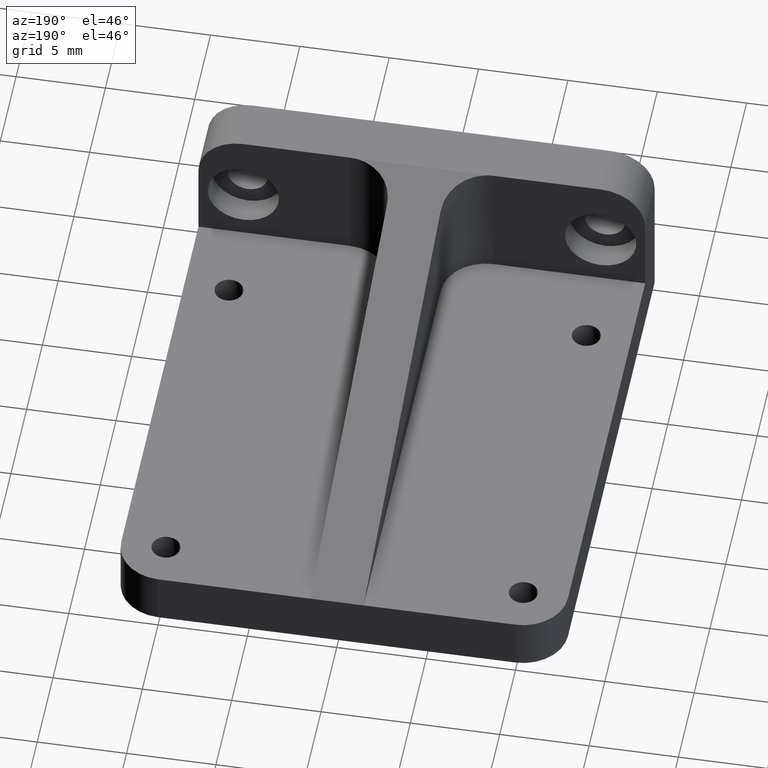
[diagram: clean part render]
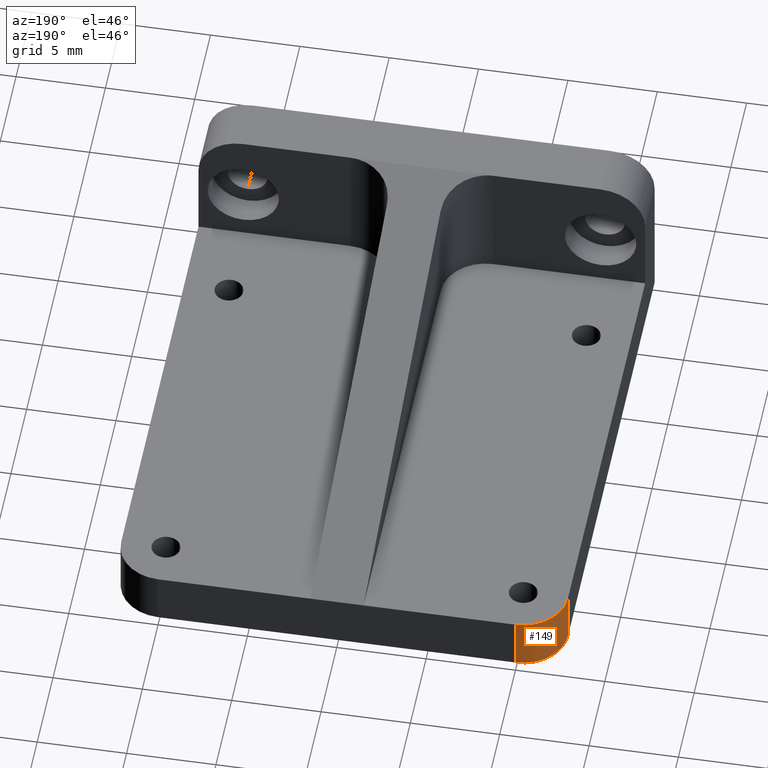
[diagram: same view with one face highlighted and labeled with its STEP entity id]
A machine part, auxiliary view. The second image highlights one B-rep face of the part: STEP entity #149.
In plain terms, the highlighted cylindrical surface (partial cylindrical patch) has radius 2.5 mm, axis along (0, 0, -1).
Its self-contained STEP definition (entity closure, byte-faithful):
#49 = DIRECTION ( 'NONE',  ( 1.000000000000000000, 0.0000000000000000000, 0.0000000000000000000 ) ) ;
#69 = DIRECTION ( 'NONE',  ( -1.000000000000000000, 0.0000000000000000000, 0.0000000000000000000 ) ) ;
#73 = EDGE_CURVE ( 'NONE', #799, #206, #541, .T. ) ;
#149 = ADVANCED_FACE ( 'NONE', ( #1026 ), #537, .T. ) ;
#198 = EDGE_CURVE ( 'NONE', #389, #799, #1109, .T. ) ;
#206 = VERTEX_POINT ( 'NONE', #356 ) ;
#210 = LINE ( 'NONE', #777, #283 ) ;
#215 = ORIENTED_EDGE ( 'NONE', *, *, #298, .F. ) ;
#236 = CARTESIAN_POINT ( 'NONE',  ( -9.999999999999998224, 27.50000000000000000, 3.000000000000000000 ) ) ;
#248 = CARTESIAN_POINT ( 'NONE',  ( -9.999999999999998224, 30.00000000000000000, 3.000000000000000000 ) ) ;
#253 = DIRECTION ( 'NONE',  ( 0.0000000000000000000, 0.0000000000000000000, 1.000000000000000000 ) ) ;
#283 = VECTOR ( 'NONE', #1192, 1000.000000000000000 ) ;
#298 = EDGE_CURVE ( 'NONE', #436, #389, #210, .T. ) ;
#316 = VECTOR ( 'NONE', #999, 1000.000000000000000 ) ;
#343 = EDGE_LOOP ( 'NONE', ( #874, #215, #426, #568 ) ) ;
#356 = CARTESIAN_POINT ( 'NONE',  ( -9.999999999999998224, 30.00000000000000000, 3.000000000000002665 ) ) ;
#389 = VERTEX_POINT ( 'NONE', #1168 ) ;
#425 = AXIS2_PLACEMENT_3D ( 'NONE', #236, #253, #819 ) ;
#426 = ORIENTED_EDGE ( 'NONE', *, *, #512, .F. ) ;
#436 = VERTEX_POINT ( 'NONE', #1239 ) ;
#449 = DIRECTION ( 'NONE',  ( -0.0000000000000000000, -0.0000000000000000000, -1.000000000000000000 ) ) ;
#512 = EDGE_CURVE ( 'NONE', #206, #436, #829, .T. ) ;
#537 = CYLINDRICAL_SURFACE ( 'NONE', #1025, 2.500000000000000444 ) ;
#541 = LINE ( 'NONE', #248, #316 ) ;
#568 = ORIENTED_EDGE ( 'NONE', *, *, #73, .F. ) ;
#635 = CARTESIAN_POINT ( 'NONE',  ( -9.999999999999998224, 27.50000000000000000, 0.0000000000000000000 ) ) ;
#777 = CARTESIAN_POINT ( 'NONE',  ( -12.50000000000000000, 27.50000000000000000, 0.0000000000000000000 ) ) ;
#799 = VERTEX_POINT ( 'NONE', #998 ) ;
#817 = DIRECTION ( 'NONE',  ( 0.0000000000000000000, 0.0000000000000000000, -1.000000000000000000 ) ) ;
#819 = DIRECTION ( 'NONE',  ( 1.000000000000000000, 0.0000000000000000000, 0.0000000000000000000 ) ) ;
#829 = CIRCLE ( 'NONE', #425, 2.500000000000000444 ) ;
#874 = ORIENTED_EDGE ( 'NONE', *, *, #198, .F. ) ;
#908 = CARTESIAN_POINT ( 'NONE',  ( -9.999999999999998224, 27.50000000000000000, 0.0000000000000000000 ) ) ;
#998 = CARTESIAN_POINT ( 'NONE',  ( -9.999999999999998224, 30.00000000000000000, 0.0000000000000000000 ) ) ;
#999 = DIRECTION ( 'NONE',  ( 0.0000000000000000000, 0.0000000000000000000, 1.000000000000000000 ) ) ;
#1000 = AXIS2_PLACEMENT_3D ( 'NONE', #908, #449, #49 ) ;
#1025 = AXIS2_PLACEMENT_3D ( 'NONE', #635, #817, #69 ) ;
#1026 = FACE_OUTER_BOUND ( 'NONE', #343, .T. ) ;
#1109 = CIRCLE ( 'NONE', #1000, 2.500000000000000444 ) ;
#1168 = CARTESIAN_POINT ( 'NONE',  ( -12.50000000000000000, 27.50000000000000000, 0.0000000000000000000 ) ) ;
#1192 = DIRECTION ( 'NONE',  ( -0.0000000000000000000, 0.0000000000000000000, -1.000000000000000000 ) ) ;
#1239 = CARTESIAN_POINT ( 'NONE',  ( -12.50000000000000000, 27.50000000000000000, 3.000000000000002665 ) ) ;